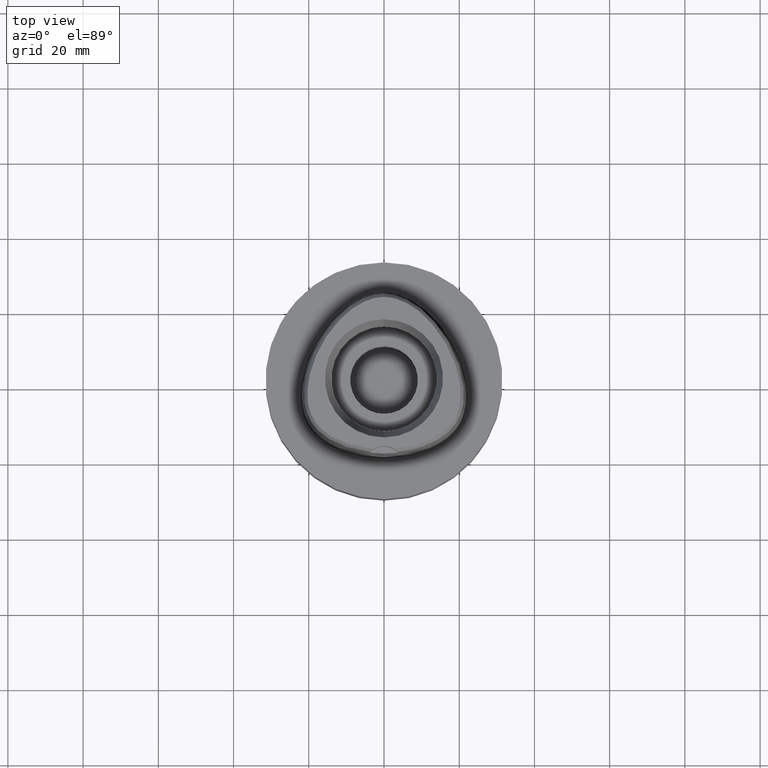
[diagram: clean part render]
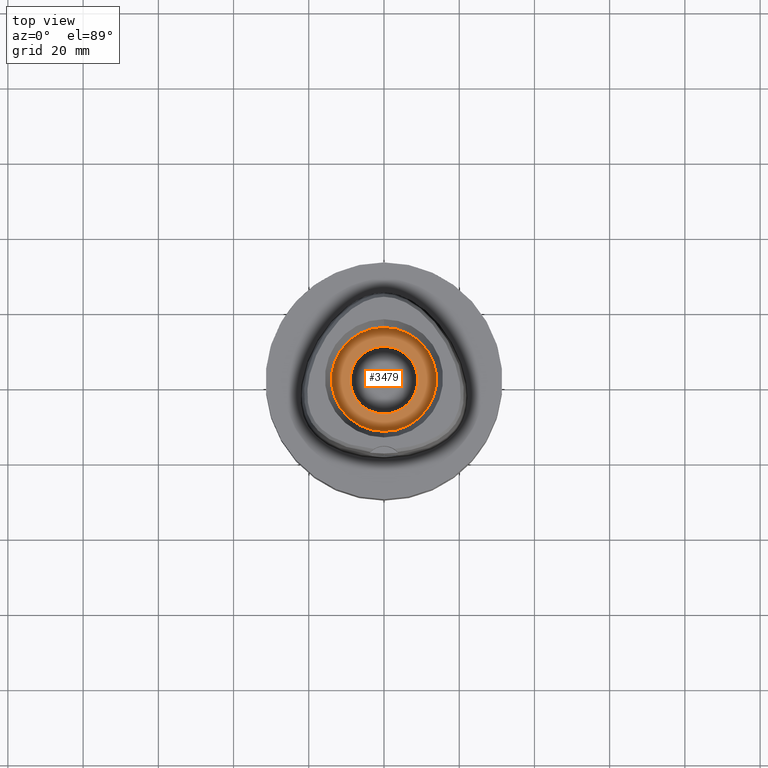
[diagram: same view with one face highlighted and labeled with its STEP entity id]
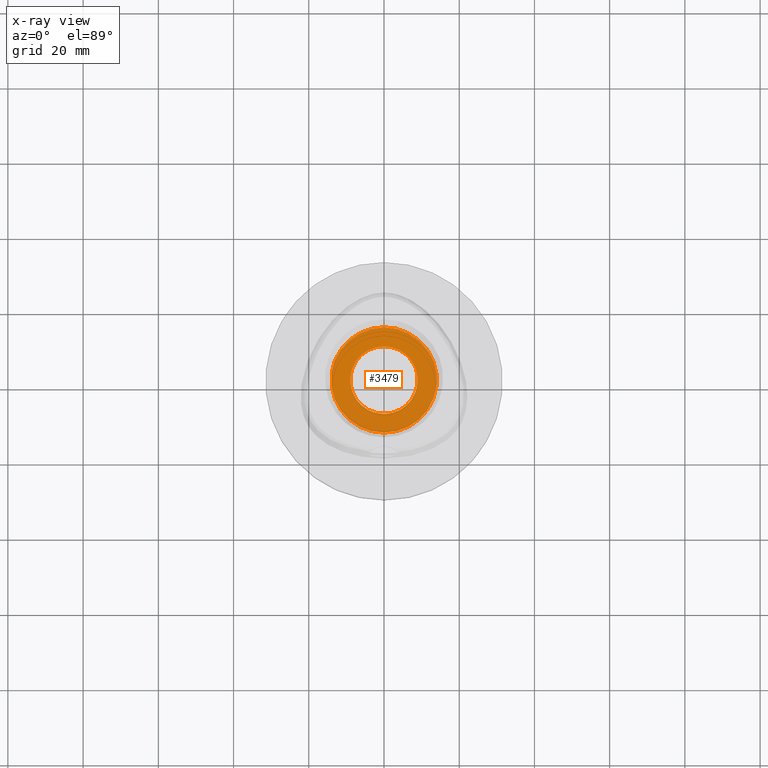
[diagram: x-ray of the same camera — body ghosted, the highlighted face saturated]
A machine part, top view. The second image highlights one B-rep face of the part: STEP entity #3479.
The next image is the same camera in x-ray: the body ghosted, the highlighted face saturated — about 0% of this face is hidden behind the body in this view.
In plain terms, the highlighted planar face has unit normal (0, 0, -1).
Its self-contained STEP definition (entity closure, byte-faithful):
#1482=CARTESIAN_POINT('',(0.E0,0.E0,1.1E1));
#1483=DIRECTION('',(0.E0,0.E0,-1.E0));
#1484=DIRECTION('',(0.E0,1.E0,0.E0));
#1485=AXIS2_PLACEMENT_3D('',#1482,#1483,#1484);
#1490=CARTESIAN_POINT('',(0.E0,0.E0,1.1E1));
#1491=DIRECTION('',(0.E0,0.E0,-1.E0));
#1492=DIRECTION('',(0.E0,-1.E0,0.E0));
#1493=AXIS2_PLACEMENT_3D('',#1490,#1491,#1492);
#1498=CARTESIAN_POINT('',(0.E0,0.E0,1.1E1));
#1499=DIRECTION('',(0.E0,0.E0,1.E0));
#1500=DIRECTION('',(0.E0,1.E0,0.E0));
#1501=AXIS2_PLACEMENT_3D('',#1498,#1499,#1500);
#1506=CARTESIAN_POINT('',(0.E0,0.E0,1.1E1));
#1507=DIRECTION('',(0.E0,0.E0,1.E0));
#1508=DIRECTION('',(0.E0,-1.E0,0.E0));
#1509=AXIS2_PLACEMENT_3D('',#1506,#1507,#1508);
#1738=CARTESIAN_POINT('',(0.E0,1.4E1,1.1E1));
#1739=VERTEX_POINT('',#1738);
#1740=CARTESIAN_POINT('',(0.E0,-1.4E1,1.1E1));
#1741=VERTEX_POINT('',#1740);
#1758=CARTESIAN_POINT('',(0.E0,9.E0,1.1E1));
#1759=CARTESIAN_POINT('',(0.E0,-9.E0,1.1E1));
#1760=VERTEX_POINT('',#1758);
#1761=VERTEX_POINT('',#1759);
#3464=CARTESIAN_POINT('',(0.E0,0.E0,1.1E1));
#3465=DIRECTION('',(0.E0,0.E0,-1.E0));
#3466=DIRECTION('',(0.E0,-1.E0,0.E0));
#3467=AXIS2_PLACEMENT_3D('',#3464,#3465,#3466);
#3468=PLANE('',#3467);
#3469=ORIENTED_EDGE('',*,*,#3282,.T.);
#3470=ORIENTED_EDGE('',*,*,#3262,.T.);
#3471=EDGE_LOOP('',(#3469,#3470));
#3472=FACE_OUTER_BOUND('',#3471,.F.);
#3474=ORIENTED_EDGE('',*,*,#3473,.T.);
#3476=ORIENTED_EDGE('',*,*,#3475,.T.);
#3477=EDGE_LOOP('',(#3474,#3476));
#3478=FACE_BOUND('',#3477,.F.);
#1486=CIRCLE('',#1485,1.4E1);
#1494=CIRCLE('',#1493,1.4E1);
#1502=CIRCLE('',#1501,9.E0);
#1510=CIRCLE('',#1509,9.E0);
#3262=EDGE_CURVE('',#1741,#1739,#1494,.T.);
#3282=EDGE_CURVE('',#1739,#1741,#1486,.T.);
#3473=EDGE_CURVE('',#1760,#1761,#1502,.T.);
#3475=EDGE_CURVE('',#1761,#1760,#1510,.T.);
#3479=ADVANCED_FACE('',(#3472,#3478),#3468,.F.);